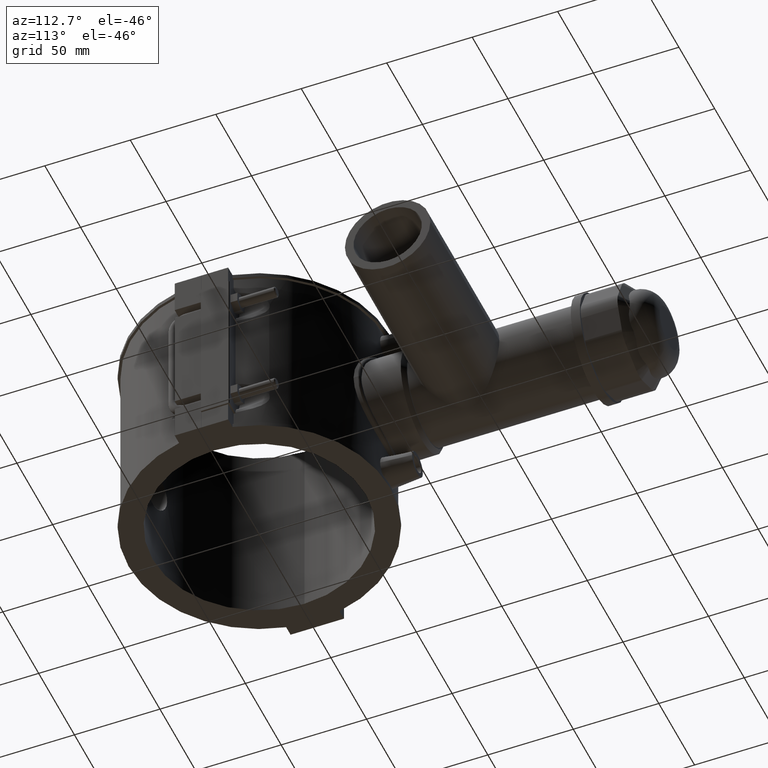
[diagram: clean part render]
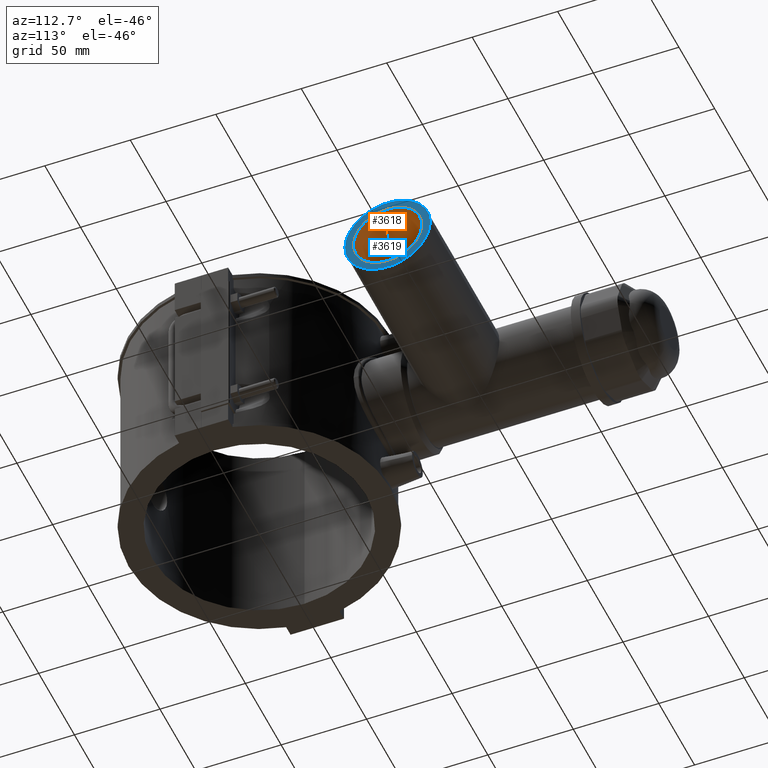
[diagram: same view with the hole feature highlighted: cylindrical wall and planar end face, labeled with their STEP entity ids]
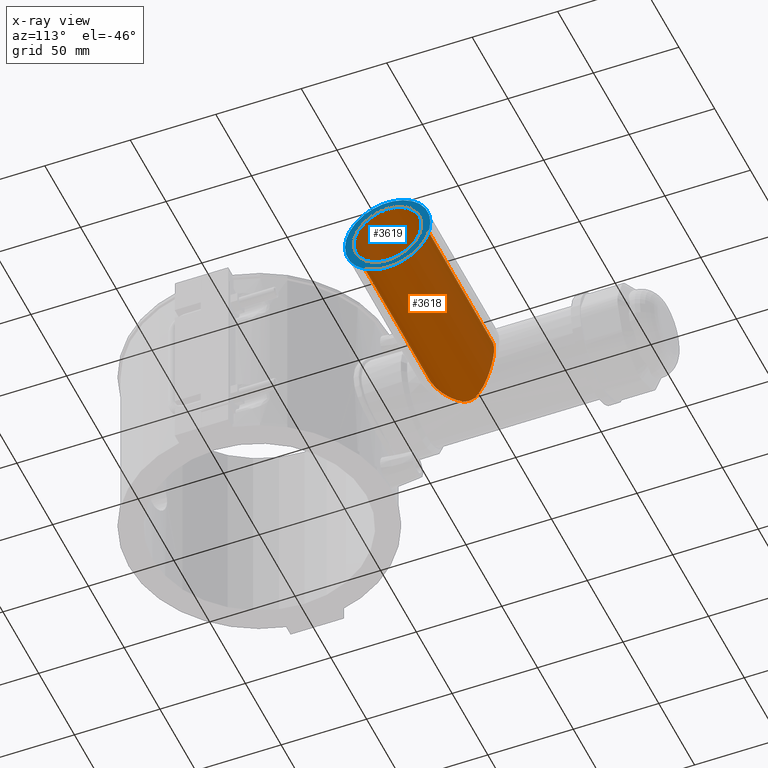
[diagram: x-ray of the same camera — body ghosted, the hole faces saturated]
A machine part, auxiliary view. The highlighted faces form one hole feature of diameter 40 mm: the cylindrical wall (entity #3618, orange) and its adjacent planar end face (entity #3619, blue) — they share a circular edge in the B-rep.
The next image is the same camera in x-ray (body ghosted, the hole faces saturated) — the bore reads through the body.
Wall:
#662=FACE_BOUND('',#1114,.T.);
#716=B_SPLINE_CURVE_WITH_KNOTS('',3,(#5216,#5217,#5218,#5219,#5220,#5221,
#5222,#5223,#5224,#5225,#5226,#5227,#5228,#5229,#5230,#5231,#5232,#5233,
#5234,#5235,#5236,#5237,#5238,#5239,#5240,#5241,#5242,#5243,#5244,#5245,
#5246,#5247,#5248,#5249,#5250,#5251,#5252,#5253,#5254,#5255,#5256,#5257,
#5258,#5259,#5260,#5261,#5262,#5263,#5264,#5265,#5266,#5267,#5268,#5269,
#5270,#5271,#5272,#5273,#5274,#5275,#5276,#5277,#5278,#5279,#5280,#5281),
 .UNSPECIFIED.,.T.,.F.,(4,2,2,2,2,2,2,2,2,2,2,2,2,2,2,2,2,2,2,2,2,2,2,2,
2,2,2,2,2,2,2,2,4),(0.,0.442143736071157,0.884287472142314,1.32643120821347,
1.76857494428463,2.17430236778484,2.58002979128504,2.98575721478525,3.39148463828546,
3.79721206178567,4.20293948528587,4.60866690878608,5.01439433228629,5.45653806835744,
5.8986818044286,6.34082554049975,6.78296927657091,7.22511301264207,7.66725674871322,
8.10940048478438,8.55154422085553,8.95727164435574,9.36299906785595,9.76872649135615,
10.1744539148564,10.5801813383566,10.9859087618568,11.391636185357,11.7973636088572,
12.2395073449284,12.6816510809995,13.1237948170707,13.5659385531418),
 .UNSPECIFIED.);
#825=CYLINDRICAL_SURFACE('',#3850,20.);
#882=FACE_OUTER_BOUND('',#1113,.T.);
#1113=EDGE_LOOP('',(#2410));
#1114=EDGE_LOOP('',(#2411));
#1392=CIRCLE('',#3851,20.);
#1518=VERTEX_POINT('',#5215);
#1523=VERTEX_POINT('',#5431);
#1871=EDGE_CURVE('',#1518,#1518,#716,.T.);
#1876=EDGE_CURVE('',#1523,#1523,#1392,.T.);
#2410=ORIENTED_EDGE('',*,*,#1871,.T.);
#2411=ORIENTED_EDGE('',*,*,#1876,.T.);
#3618=ADVANCED_FACE('',(#882,#662),#825,.F.);
#3850=AXIS2_PLACEMENT_3D('',#5430,#4192,#4193);
#3851=AXIS2_PLACEMENT_3D('',#5432,#4194,#4195);
#4192=DIRECTION('center_axis',(1.,0.,0.));
#4193=DIRECTION('ref_axis',(0.,1.,0.));
#4194=DIRECTION('center_axis',(1.,0.,0.));
#4195=DIRECTION('ref_axis',(0.,0.,-1.));
#5215=CARTESIAN_POINT('',(8.86090429922345,126.5,-20.));
#5216=CARTESIAN_POINT('Ctrl Pts',(8.86090429922345,126.5,-20.));
#5217=CARTESIAN_POINT('Ctrl Pts',(8.86090429922345,125.02618754643,-20.));
#5218=CARTESIAN_POINT('Ctrl Pts',(9.22700011413251,123.673142556364,-19.8430691680668));
#5219=CARTESIAN_POINT('Ctrl Pts',(10.3143989081624,121.092552630964,-19.3002089809616));
#5220=CARTESIAN_POINT('Ctrl Pts',(11.034147438703,119.865031014975,-18.9110609535749));
#5221=CARTESIAN_POINT('Ctrl Pts',(12.5993020870539,117.49919472686,-17.9063610579372));
#5222=CARTESIAN_POINT('Ctrl Pts',(13.4445638112515,116.367124356731,-17.290678973813));
#5223=CARTESIAN_POINT('Ctrl Pts',(15.110154315822,114.242935328104,-15.8558226920246));
#5224=CARTESIAN_POINT('Ctrl Pts',(15.9312565672058,113.251807937219,-15.0360791846809));
#5225=CARTESIAN_POINT('Ctrl Pts',(17.3839256795331,111.537548745516,-13.3218199929777));
#5226=CARTESIAN_POINT('Ctrl Pts',(18.0743685393942,110.743001735985,-12.3823760197625));
#5227=CARTESIAN_POINT('Ctrl Pts',(19.3399334877275,109.306011993848,-10.2943191500215));
#5228=CARTESIAN_POINT('Ctrl Pts',(19.9147980678812,108.663627316066,-9.14551023840241));
#5229=CARTESIAN_POINT('Ctrl Pts',(20.8657460268488,107.60776970666,-6.69777614220209));
#5230=CARTESIAN_POINT('Ctrl Pts',(21.2426542570675,107.193323069551,-5.39580319282691));
#5231=CARTESIAN_POINT('Ctrl Pts',(21.7473991330206,106.639315639667,-2.72317516145914));
#5232=CARTESIAN_POINT('Ctrl Pts',(21.875,106.5,-1.3524247450007));
#5233=CARTESIAN_POINT('Ctrl Pts',(21.875,106.5,1.35242474500069));
#5234=CARTESIAN_POINT('Ctrl Pts',(21.7473991330206,106.639315639667,2.72317516145913));
#5235=CARTESIAN_POINT('Ctrl Pts',(21.2426542570676,107.193323069551,5.3958031928269));
#5236=CARTESIAN_POINT('Ctrl Pts',(20.8657460268488,107.60776970666,6.69777614220208));
#5237=CARTESIAN_POINT('Ctrl Pts',(19.9147980678813,108.663627316066,9.1455102384024));
#5238=CARTESIAN_POINT('Ctrl Pts',(19.3399334877276,109.306011993848,10.2943191500215));
#5239=CARTESIAN_POINT('Ctrl Pts',(18.0743685393943,110.743001735985,12.3823760197625));
#5240=CARTESIAN_POINT('Ctrl Pts',(17.3839256795331,111.537548745516,13.3218199929777));
#5241=CARTESIAN_POINT('Ctrl Pts',(15.9312565672059,113.251807937219,15.0360791846809));
#5242=CARTESIAN_POINT('Ctrl Pts',(15.1101543158221,114.242935328104,15.8558226920246));
#5243=CARTESIAN_POINT('Ctrl Pts',(13.4445638112516,116.367124356731,17.290678973813));
#5244=CARTESIAN_POINT('Ctrl Pts',(12.5993020870541,117.49919472686,17.9063610579372));
#5245=CARTESIAN_POINT('Ctrl Pts',(11.0341474387032,119.865031014975,18.9110609535749));
#5246=CARTESIAN_POINT('Ctrl Pts',(10.3143989081625,121.092552630964,19.3002089809616));
#5247=CARTESIAN_POINT('Ctrl Pts',(9.22700011413268,123.673142556364,19.8430691680668));
#5248=CARTESIAN_POINT('Ctrl Pts',(8.86090429922363,125.02618754643,20.));
#5249=CARTESIAN_POINT('Ctrl Pts',(8.86090429922363,127.973812453571,20.));
#5250=CARTESIAN_POINT('Ctrl Pts',(9.22700011413268,129.326857443636,19.8430691680668));
#5251=CARTESIAN_POINT('Ctrl Pts',(10.3143989081625,131.907447369036,19.3002089809616));
#5252=CARTESIAN_POINT('Ctrl Pts',(11.0341474387032,133.134968985025,18.9110609535749));
#5253=CARTESIAN_POINT('Ctrl Pts',(12.5993020870541,135.50080527314,17.9063610579372));
#5254=CARTESIAN_POINT('Ctrl Pts',(13.4445638112516,136.632875643269,17.290678973813));
#5255=CARTESIAN_POINT('Ctrl Pts',(15.1101543158221,138.757064671896,15.8558226920246));
#5256=CARTESIAN_POINT('Ctrl Pts',(15.9312565672059,139.748192062781,15.0360791846809));
#5257=CARTESIAN_POINT('Ctrl Pts',(17.3839256795332,141.462451254484,13.3218199929777));
#5258=CARTESIAN_POINT('Ctrl Pts',(18.0743685393943,142.256998264015,12.3823760197625));
#5259=CARTESIAN_POINT('Ctrl Pts',(19.3399334877276,143.693988006152,10.2943191500215));
#5260=CARTESIAN_POINT('Ctrl Pts',(19.9147980678813,144.336372683934,9.1455102384024));
#5261=CARTESIAN_POINT('Ctrl Pts',(20.8657460268488,145.39223029334,6.69777614220208));
#5262=CARTESIAN_POINT('Ctrl Pts',(21.2426542570676,145.806676930449,5.3958031928269));
#5263=CARTESIAN_POINT('Ctrl Pts',(21.7473991330206,146.360684360333,2.72317516145913));
#5264=CARTESIAN_POINT('Ctrl Pts',(21.875,146.5,1.35242474500069));
#5265=CARTESIAN_POINT('Ctrl Pts',(21.875,146.5,-1.35242474500069));
#5266=CARTESIAN_POINT('Ctrl Pts',(21.7473991330206,146.360684360333,-2.72317516145913));
#5267=CARTESIAN_POINT('Ctrl Pts',(21.2426542570675,145.806676930449,-5.3958031928269));
#5268=CARTESIAN_POINT('Ctrl Pts',(20.8657460268488,145.39223029334,-6.69777614220209));
#5269=CARTESIAN_POINT('Ctrl Pts',(19.9147980678812,144.336372683934,-9.1455102384024));
#5270=CARTESIAN_POINT('Ctrl Pts',(19.3399334877275,143.693988006152,-10.2943191500215));
#5271=CARTESIAN_POINT('Ctrl Pts',(18.0743685393942,142.256998264015,-12.3823760197625));
#5272=CARTESIAN_POINT('Ctrl Pts',(17.3839256795331,141.462451254484,-13.3218199929777));
#5273=CARTESIAN_POINT('Ctrl Pts',(15.9312565672058,139.748192062781,-15.0360791846809));
#5274=CARTESIAN_POINT('Ctrl Pts',(15.110154315822,138.757064671896,-15.8558226920246));
#5275=CARTESIAN_POINT('Ctrl Pts',(13.4445638112515,136.632875643269,-17.290678973813));
#5276=CARTESIAN_POINT('Ctrl Pts',(12.5993020870539,135.50080527314,-17.9063610579372));
#5277=CARTESIAN_POINT('Ctrl Pts',(11.034147438703,133.134968985025,-18.9110609535749));
#5278=CARTESIAN_POINT('Ctrl Pts',(10.3143989081624,131.907447369036,-19.3002089809616));
#5279=CARTESIAN_POINT('Ctrl Pts',(9.22700011413251,129.326857443636,-19.8430691680668));
#5280=CARTESIAN_POINT('Ctrl Pts',(8.86090429922345,127.973812453571,-20.));
#5281=CARTESIAN_POINT('Ctrl Pts',(8.86090429922345,126.5,-20.));
#5430=CARTESIAN_POINT('Origin',(61.5,126.5,0.));
#5431=CARTESIAN_POINT('',(123.,126.5,-20.));
#5432=CARTESIAN_POINT('Origin',(123.,126.5,0.));
End face:
#663=FACE_BOUND('',#1116,.T.);
#883=FACE_OUTER_BOUND('',#1115,.T.);
#1115=EDGE_LOOP('',(#2412));
#1116=EDGE_LOOP('',(#2413));
#1391=CIRCLE('',#3849,25.);
#1392=CIRCLE('',#3851,20.);
#1521=VERTEX_POINT('',#5353);
#1523=VERTEX_POINT('',#5431);
#1874=EDGE_CURVE('',#1521,#1521,#1391,.T.);
#1876=EDGE_CURVE('',#1523,#1523,#1392,.T.);
#2412=ORIENTED_EDGE('',*,*,#1874,.T.);
#2413=ORIENTED_EDGE('',*,*,#1876,.F.);
#3489=PLANE('',#3852);
#3619=ADVANCED_FACE('',(#883,#663),#3489,.T.);
#3849=AXIS2_PLACEMENT_3D('',#5354,#4190,#4191);
#3851=AXIS2_PLACEMENT_3D('',#5432,#4194,#4195);
#3852=AXIS2_PLACEMENT_3D('',#5433,#4196,#4197);
#4190=DIRECTION('center_axis',(1.,0.,0.));
#4191=DIRECTION('ref_axis',(0.,0.,-1.));
#4194=DIRECTION('center_axis',(1.,0.,0.));
#4195=DIRECTION('ref_axis',(0.,0.,-1.));
#4196=DIRECTION('center_axis',(1.,0.,0.));
#4197=DIRECTION('ref_axis',(0.,0.,-1.));
#5353=CARTESIAN_POINT('',(123.,151.5,0.));
#5354=CARTESIAN_POINT('Origin',(123.,126.5,0.));
#5431=CARTESIAN_POINT('',(123.,126.5,-20.));
#5432=CARTESIAN_POINT('Origin',(123.,126.5,0.));
#5433=CARTESIAN_POINT('Origin',(123.,146.5,0.));